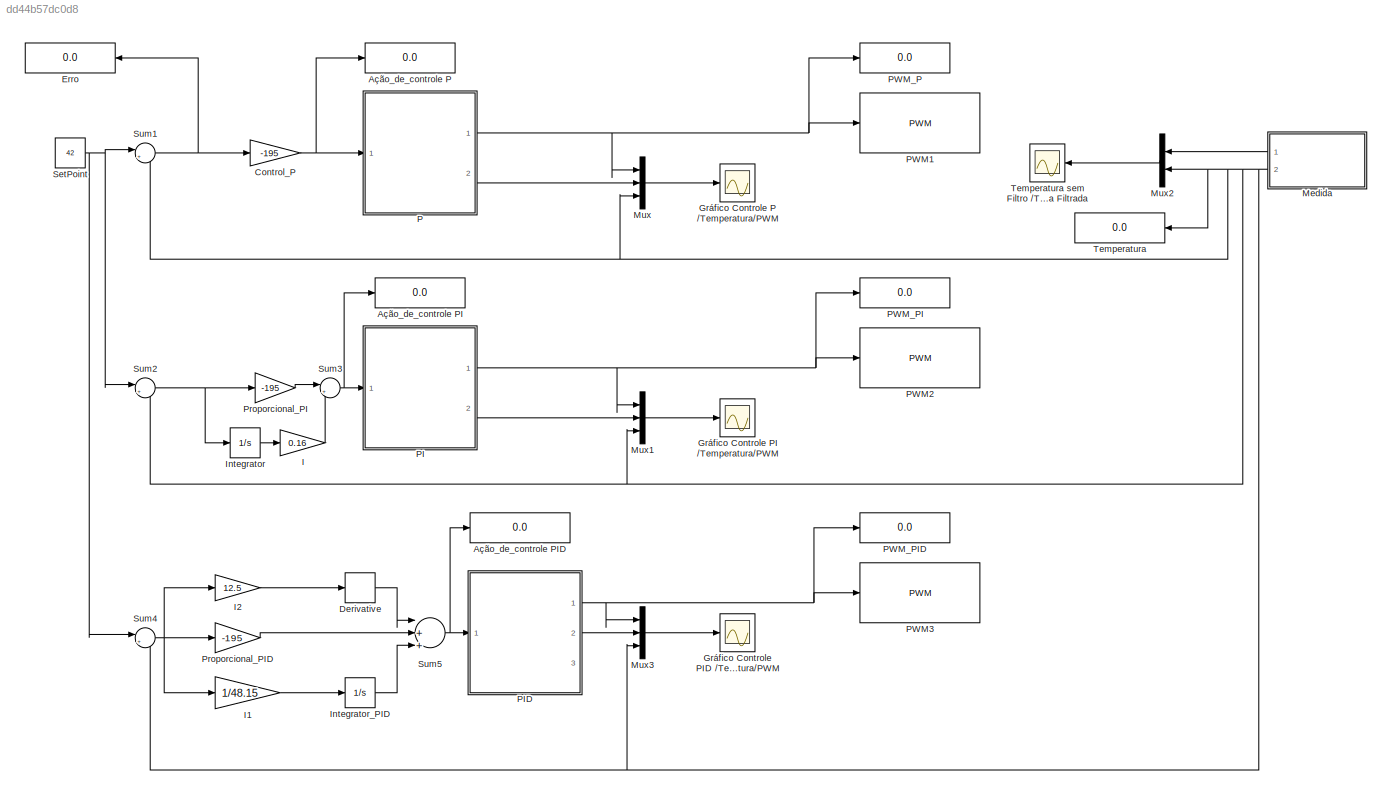
MODEL slx_dd44b57dc0d8
KIND model
CONFIG AbsTol = auto
CONFIG FixedStep = auto
CONFIG MaxStep = auto
CONFIG MinStep = auto
CONFIG RelTol = 1e-3
CONFIG SampleTimeConstraint = Unconstrained
CONFIG Solver = ode45
CONFIG SolverMode = Auto
CONFIG SolverName = ode45
CONFIG StartTime = 0.0
CONFIG StopTime = 10.0
BLOCK [Display] Ação_de_controle P
  Decimation = 1
  Ports = [1]
BLOCK [Display] Ação_de_controle PI
  Decimation = 1
  Ports = [1]
BLOCK [Display] Ação_de_controle PID
  Decimation = 1
  Ports = [1]
BLOCK [Gain] Control_P
  Gain = -195
  OutDataTypeStr = Inherit: Inherit via internal rule
  ParamDataTypeStr = Inherit: Inherit via internal rule
  SaturateOnIntegerOverflow = off
BLOCK [Derivative] Derivative
BLOCK [Display] Erro 
  Decimation = 1
  Ports = [1]
BLOCK [Scope] Gráfico Controle P //Temperatura//PWM
  Floating = off
  MaxDataPoints = 1000
  NumInputPorts = 1
  Ports = [1]
  SaveName = ScopeData1
  TimeRange = 600
  YMax = 275
  YMin = -200
BLOCK [Scope] Gráfico Controle PI //Temperatura//PWM
  Floating = off
  NumInputPorts = 1
  Ports = [1]
  TimeRange = 850
  YMax = 275
  YMin = -50
BLOCK [Scope] Gráfico Controle PID //Temperatura//PWM
  Floating = off
  NumInputPorts = 1
  Ports = [1]
  SaveName = ScopeData3
  TimeRange = 6000
  YMax = 32.5
  YMin = -20
BLOCK [Gain] I
  Gain = 0.16
  OutDataTypeStr = Inherit: Inherit via internal rule
  ParamDataTypeStr = Inherit: Inherit via internal rule
  SaturateOnIntegerOverflow = off
BLOCK [Gain] I1
  Gain = 1/48.15
  OutDataTypeStr = Inherit: Inherit via internal rule
  ParamDataTypeStr = Inherit: Inherit via internal rule
  SaturateOnIntegerOverflow = off
BLOCK [Gain] I2
  Gain = 12.5
  OutDataTypeStr = Inherit: Inherit via internal rule
  ParamDataTypeStr = Inherit: Inherit via internal rule
  SaturateOnIntegerOverflow = off
BLOCK [Integrator] Integrator
  Ports = [1, 1]
BLOCK [Integrator] Integrator_PID
  Ports = [1, 1]
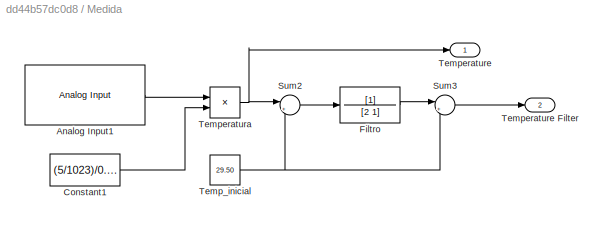
BLOCK [SubSystem] Medida
  Ports = [0, 2]
  RequestExecContextInheritance = off
BLOCK [Reference] Medida/Analog Input1  REF=arduinolib/Analog Input
  Ports = [0, 1]
  SourceBlock = arduinolib/Analog Input
  SourceType = Arduino Analog Input
  blockPlatform = arduino
  pinNumber = 0
  sampleTime = 0.1
BLOCK [Constant] Medida/Constant1
  OutDataTypeStr = double
  Value = (5/1023)/0.01
BLOCK [TransferFcn] Medida/Filtro
  Denominator = [2 1]
BLOCK [Sum] Medida/Sum2
  IconShape = round
  InputSameDT = off
  Inputs = |+-
  OutDataTypeStr = Inherit: Inherit via internal rule
  Ports = [2, 1]
  SaturateOnIntegerOverflow = off
BLOCK [Sum] Medida/Sum3
  IconShape = round
  InputSameDT = off
  Inputs = |++
  OutDataTypeStr = Inherit: Inherit via internal rule
  Ports = [2, 1]
  SaturateOnIntegerOverflow = off
BLOCK [Constant] Medida/Temp_inicial
  OutDataTypeStr = double
  Value = 29.50
  VectorParams1D = off
BLOCK [Product] Medida/Temperatura
  InputSameDT = off
  OutDataTypeStr = double
  Ports = [2, 1]
  RndMeth = Floor
  SaturateOnIntegerOverflow = off
BLOCK [Outport] Medida/Temperature
  IconDisplay = Port number
BLOCK [Outport] Medida/Temperature Filter
  IconDisplay = Port number
  Port = 2
BLOCK [Mux] Mux
  DisplayOption = bar
  Inputs = 3
  Ports = [3, 1]
BLOCK [Mux] Mux1
  DisplayOption = bar
  Inputs = 3
  Ports = [3, 1]
BLOCK [Mux] Mux2
  DisplayOption = bar
  Inputs = 2
  Ports = [2, 1]
BLOCK [Mux] Mux3
  DisplayOption = bar
  Inputs = 3
  Ports = [3, 1]
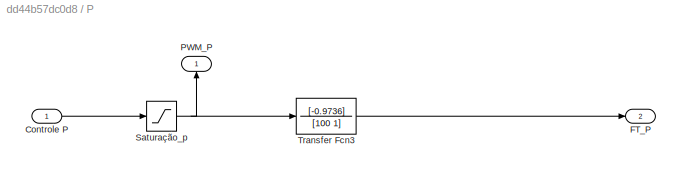
BLOCK [SubSystem] P 
  Ports = [1, 2]
  RequestExecContextInheritance = off
BLOCK [Inport] P /Controle P
  IconDisplay = Port number
BLOCK [Outport] P /FT_P
  IconDisplay = Port number
  Port = 2
BLOCK [Outport] P /PWM_P
  IconDisplay = Port number
BLOCK [Saturate] P /Saturação_p
  InputPortMap = u0
  LowerLimit = 20
  Ports = [1, 1]
  UpperLimit = 255
BLOCK [TransferFcn] P /Transfer Fcn3
  Denominator = [100 1]
  Numerator = [-0.9736]
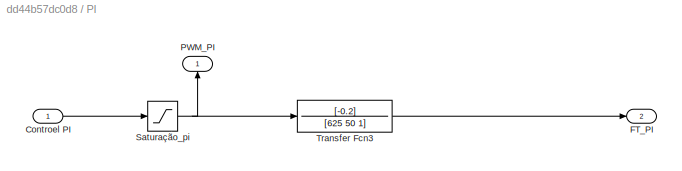
BLOCK [SubSystem] PI 
  Ports = [1, 2]
  RequestExecContextInheritance = off
BLOCK [Inport] PI /Controel PI
  IconDisplay = Port number
BLOCK [Outport] PI /FT_PI
  IconDisplay = Port number
  Port = 2
BLOCK [Outport] PI /PWM_PI
  IconDisplay = Port number
BLOCK [Saturate] PI /Saturação_pi
  InputPortMap = u0
  LowerLimit = 20
  Ports = [1, 1]
  UpperLimit = 255
BLOCK [TransferFcn] PI /Transfer Fcn3
  Denominator = [625 50 1]
  Numerator = [-0.2]
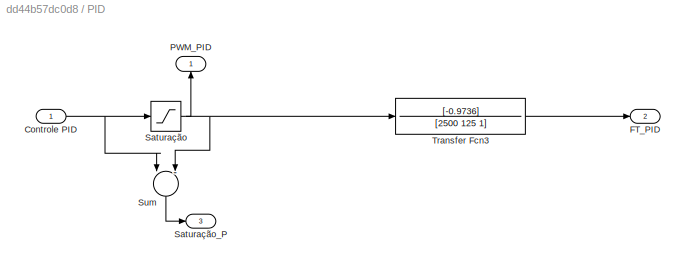
BLOCK [SubSystem] PID
  Ports = [1, 3]
  RequestExecContextInheritance = off
BLOCK [Inport] PID/Controle PID
  IconDisplay = Port number
BLOCK [Outport] PID/FT_PID
  IconDisplay = Port number
  Port = 2
BLOCK [Outport] PID/PWM_PID
  IconDisplay = Port number
BLOCK [Saturate] PID/Saturação
  InputPortMap = u0
  LowerLimit = 20
  Ports = [1, 1]
  UpperLimit = 255
BLOCK [Outport] PID/Saturação_P
  IconDisplay = Port number
  Port = 3
BLOCK [Sum] PID/Sum
  InputSameDT = off
  Inputs = |-+
  OutDataTypeStr = Inherit: Inherit via internal rule
  Ports = [2, 1]
  SaturateOnIntegerOverflow = off
BLOCK [TransferFcn] PID/Transfer Fcn3
  Denominator = [2500 125 1]
  Numerator = [-0.9736]
BLOCK [Reference] PWM1  REF=arduinolib/PWM
  Ports = [1]
  SourceBlock = arduinolib/PWM
  SourceType = Arduino PWM
  blockPlatform = arduino
  pinNumber = 9
BLOCK [Reference] PWM2  REF=arduinolib/PWM
  Ports = [1]
  SourceBlock = arduinolib/PWM
  SourceType = Arduino PWM
  blockPlatform = arduino
  pinNumber = 10
BLOCK [Reference] PWM3  REF=arduinolib/PWM
  Ports = [1]
  SourceBlock = arduinolib/PWM
  SourceType = Arduino PWM
  blockPlatform = arduino
  pinNumber = 8
BLOCK [Display] PWM_P
  Decimation = 1
  Ports = [1]
BLOCK [Display] PWM_PI
  Decimation = 1
  Ports = [1]
BLOCK [Display] PWM_PID
  Decimation = 1
  Ports = [1]
BLOCK [Gain] Proporcional_PI
  Gain = -195
  OutDataTypeStr = Inherit: Inherit via internal rule
  ParamDataTypeStr = Inherit: Inherit via internal rule
  SaturateOnIntegerOverflow = off
BLOCK [Gain] Proporcional_PID
  Gain = -195
  OutDataTypeStr = Inherit: Inherit via internal rule
  ParamDataTypeStr = Inherit: Inherit via internal rule
  SaturateOnIntegerOverflow = off
BLOCK [Constant] SetPoint
  Value = 42
BLOCK [Sum] Sum1
  IconShape = round
  InputSameDT = off
  Inputs = |+-
  OutDataTypeStr = Inherit: Inherit via internal rule
  Ports = [2, 1]
  SaturateOnIntegerOverflow = off
BLOCK [Sum] Sum2
  IconShape = round
  InputSameDT = off
  Inputs = |+-
  OutDataTypeStr = Inherit: Inherit via internal rule
  Ports = [2, 1]
  SaturateOnIntegerOverflow = off
BLOCK [Sum] Sum3
  IconShape = round
  InputSameDT = off
  Inputs = |++
  OutDataTypeStr = Inherit: Inherit via internal rule
  Ports = [2, 1]
  SaturateOnIntegerOverflow = off
BLOCK [Sum] Sum4
  AccumDataTypeStr = double
  IconShape = round
  InputSameDT = off
  Inputs = |+-
  OutDataTypeStr = double
  Ports = [2, 1]
  SaturateOnIntegerOverflow = off
BLOCK [Sum] Sum5
  InputSameDT = off
  Inputs = |+++
  OutDataTypeStr = Inherit: Inherit via internal rule
  Ports = [3, 1]
  SaturateOnIntegerOverflow = off
BLOCK [Display] Temperatura 
  Decimation = 1
  Ports = [1]
BLOCK [Scope] Temperatura sem Filtro //Temperatura  Filtrada
  Floating = off
  NumInputPorts = 1
  Ports = [1]
  SaveName = ScopeData2
  ShowLegends = on
  TimeRange = 5000
  YMax = 42
  YMin = 28
NET Control_P:1 -> Ação_de_controle P:1, P :1
LINE Derivative:1 -> Sum5:1
LINE I1:1 -> Integrator_PID:1
LINE I2:1 -> Derivative:1
LINE I:1 -> Sum3:2
LINE Integrator:1 -> I:1
LINE Integrator_PID:1 -> Sum5:3
LINE Medida/Analog Input1:1 -> Medida/Temperatura:1
LINE Medida/Constant1:1 -> Medida/Temperatura:2
LINE Medida/Filtro:1 -> Medida/Sum3:1
LINE Medida/Sum2:1 -> Medida/Filtro:1
LINE Medida/Sum3:1 -> Medida/Temperature Filter:1
NET Medida/Temp_inicial:1 -> Medida/Sum2:2, Medida/Sum3:2
NET Medida/Temperatura:1 -> Medida/Sum2:1, Medida/Temperature:1
LINE Medida:1 -> Mux2:1
NET Medida:2 -> Mux1:3, Mux2:2, Mux3:3, Mux:3, Sum1:2, Sum2:2, Sum4:2, Temperatura :1
LINE Mux1:1 -> Gráfico Controle PI //Temperatura//PWM:1
LINE Mux2:1 -> Temperatura sem Filtro //Temperatura  Filtrada:1
LINE Mux3:1 -> Gráfico Controle PID //Temperatura//PWM:1
LINE Mux:1 -> Gráfico Controle P //Temperatura//PWM:1
LINE P /Controle P:1 -> P /Saturação_p:1
NET P /Saturação_p:1 -> P /PWM_P:1, P /Transfer Fcn3:1
LINE P /Transfer Fcn3:1 -> P /FT_P:1
NET P :1 -> Mux:1, PWM1:1, PWM_P:1
LINE P :2 -> Mux:2
LINE PI /Controel PI:1 -> PI /Saturação_pi:1
NET PI /Saturação_pi:1 -> PI /PWM_PI:1, PI /Transfer Fcn3:1
LINE PI /Transfer Fcn3:1 -> PI /FT_PI:1
NET PI :1 -> Mux1:1, PWM2:1, PWM_PI:1
LINE PI :2 -> Mux1:2
NET PID/Controle PID:1 -> PID/Saturação:1, PID/Sum:1
NET PID/Saturação:1 -> PID/PWM_PID:1, PID/Sum:2, PID/Transfer Fcn3:1
LINE PID/Sum:1 -> PID/Saturação_P:1
LINE PID/Transfer Fcn3:1 -> PID/FT_PID:1
NET PID:1 -> Mux3:1, PWM3:1, PWM_PID:1
LINE PID:2 -> Mux3:2
LINE Proporcional_PI:1 -> Sum3:1
LINE Proporcional_PID:1 -> Sum5:2
NET SetPoint:1 -> Sum1:1, Sum2:1, Sum4:1
NET Sum1:1 -> Control_P:1, Erro :1
NET Sum2:1 -> Integrator:1, Proporcional_PI:1
NET Sum3:1 -> Ação_de_controle PI:1, PI :1
NET Sum4:1 -> I1:1, I2:1, Proporcional_PID:1
NET Sum5:1 -> Ação_de_controle PID:1, PID:1
note: NET lines group one-source signal fan-out (src -> all destinations, sorted); 1:1 wires keep LINE
